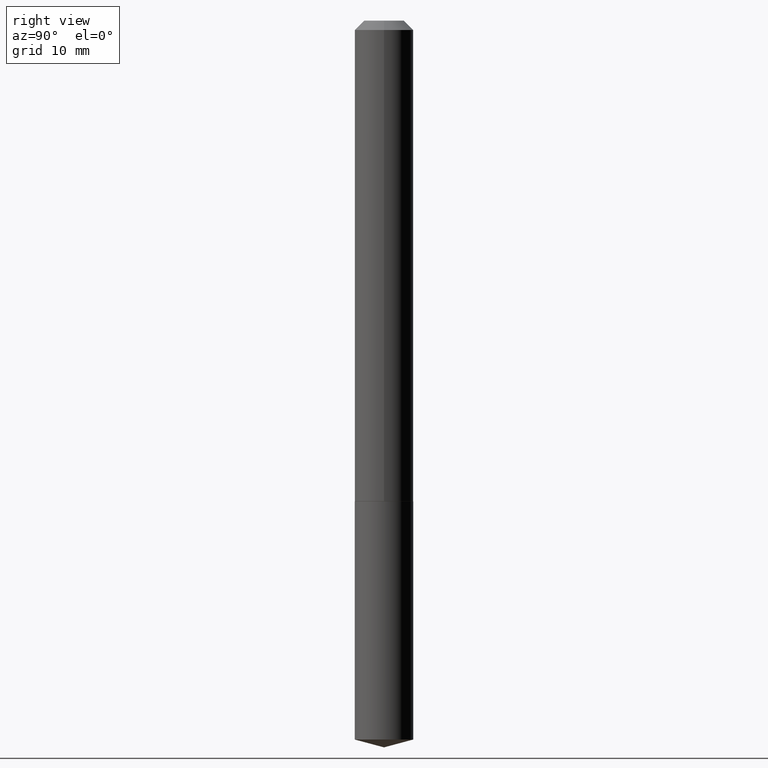
[diagram: clean part render]
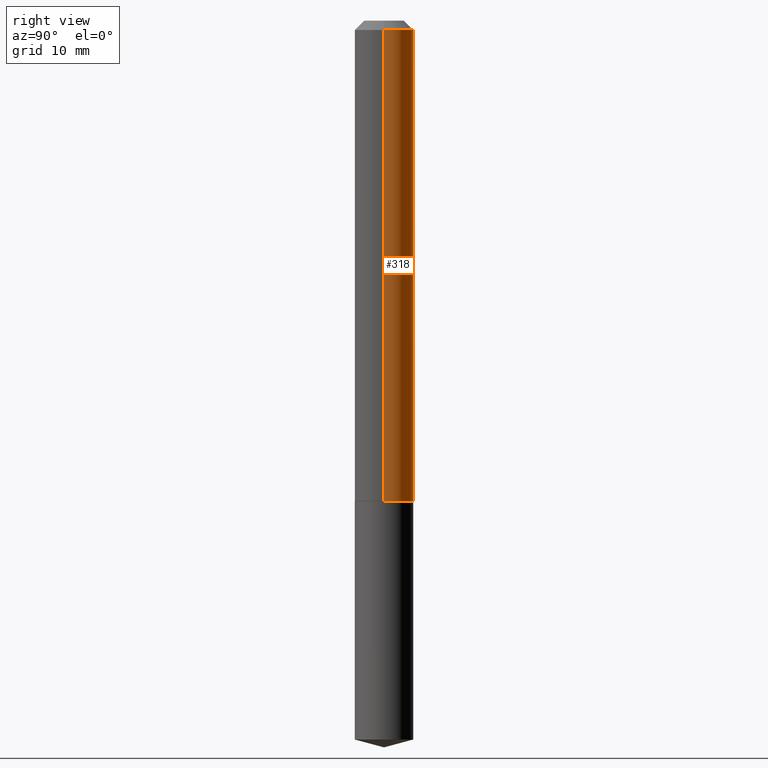
[diagram: same view with one face highlighted and labeled with its STEP entity id]
A machine part, right view. The second image highlights one B-rep face of the part: STEP entity #318.
In plain terms, the highlighted cylindrical surface (edge-blend (fillet) strip) has radius 2.5006 mm, axis along (-0, 0, 1).
Its self-contained STEP definition (entity closure, byte-faithful):
#1 = CYLINDRICAL_SURFACE ( 'NONE', #125, 0.09845000000000010687 ) ;
#11 = DIRECTION ( 'NONE',  ( -2.445468806185136877E-29, 3.491481338843145188E-15, 1.000000000000000000 ) ) ;
#12 = VERTEX_POINT ( 'NONE', #174 ) ;
#14 = LINE ( 'NONE', #284, #69 ) ;
#53 = ORIENTED_EDGE ( 'NONE', *, *, #368, .T. ) ;
#57 = FACE_OUTER_BOUND ( 'NONE', #258, .T. ) ;
#63 = EDGE_CURVE ( 'NONE', #351, #315, #94, .T. ) ;
#69 = VECTOR ( 'NONE', #11, 39.37007874015748143 ) ;
#86 = DIRECTION ( 'NONE',  ( 1.000000000000000000, -6.982962677686266711E-15, 0.000000000000000000 ) ) ;
#92 = CARTESIAN_POINT ( 'NONE',  ( -0.09845000000000020401, -4.934674113135364966E-15, -1.613700000000000134 ) ) ;
#94 = CIRCLE ( 'NONE', #311, 0.09845000000000020401 ) ;
#95 = LINE ( 'NONE', #182, #371 ) ;
#108 = DIRECTION ( 'NONE',  ( -2.445468806185136597E-29, 3.491481338843145583E-15, 1.000000000000000000 ) ) ;
#118 = VERTEX_POINT ( 'NONE', #141 ) ;
#125 = AXIS2_PLACEMENT_3D ( 'NONE', #242, #238, #209 ) ;
#129 = CIRCLE ( 'NONE', #363, 0.09845000000000000973 ) ;
#141 = CARTESIAN_POINT ( 'NONE',  ( -0.09845000000000000973, -2.172126790809196006E-15, -0.03125000000000020817 ) ) ;
#151 = EDGE_CURVE ( 'NONE', #351, #12, #14, .T. ) ;
#174 = CARTESIAN_POINT ( 'NONE',  ( 0.09845000000000000973, -7.965814674570621538E-16, -0.03125000000000020817 ) ) ;
#177 = CARTESIAN_POINT ( 'NONE',  ( 7.642090019328602662E-31, -1.091087918388490267E-16, -0.03125000000000020817 ) ) ;
#182 = CARTESIAN_POINT ( 'NONE',  ( -0.09845000000000010687, 6.995293233558193923E-16, -4.842691596355960348E-30 ) ) ;
#189 = ORIENTED_EDGE ( 'NONE', *, *, #293, .F. ) ;
#209 = DIRECTION ( 'NONE',  ( 1.000000000000000000, -6.982962677686267499E-15, 4.876176775795935793E-29 ) ) ;
#227 = ORIENTED_EDGE ( 'NONE', *, *, #151, .F. ) ;
#238 = DIRECTION ( 'NONE',  ( -2.445468806185136597E-29, 3.491481338843145583E-15, 1.000000000000000000 ) ) ;
#242 = CARTESIAN_POINT ( 'NONE',  ( 0.000000000000000000, 0.000000000000000000, 0.000000000000000000 ) ) ;
#258 = EDGE_LOOP ( 'NONE', ( #287, #53, #189, #227 ) ) ;
#284 = CARTESIAN_POINT ( 'NONE',  ( 0.09845000000000010687, -6.874726756182137434E-16, 4.800596035771104119E-30 ) ) ;
#287 = ORIENTED_EDGE ( 'NONE', *, *, #63, .T. ) ;
#293 = EDGE_CURVE ( 'NONE', #12, #118, #129, .T. ) ;
#311 = AXIS2_PLACEMENT_3D ( 'NONE', #350, #108, #346 ) ;
#315 = VERTEX_POINT ( 'NONE', #92 ) ;
#318 = ADVANCED_FACE ( 'NONE', ( #57 ), #1, .T. ) ;
#335 = CARTESIAN_POINT ( 'NONE',  ( 0.09845000000000020401, -6.321676112109399581E-15, -1.613700000000000134 ) ) ;
#346 = DIRECTION ( 'NONE',  ( 1.000000000000000000, -6.982962677686269866E-15, 0.000000000000000000 ) ) ;
#350 = CARTESIAN_POINT ( 'NONE',  ( 3.946253012540955150E-29, -5.634203436491184654E-15, -1.613700000000000134 ) ) ;
#351 = VERTEX_POINT ( 'NONE', #335 ) ;
#363 = AXIS2_PLACEMENT_3D ( 'NONE', #177, #364, #86 ) ;
#364 = DIRECTION ( 'NONE',  ( -2.445468806185136597E-29, 3.491481338843145583E-15, 1.000000000000000000 ) ) ;
#365 = DIRECTION ( 'NONE',  ( -2.445468806185136877E-29, 3.491481338843145188E-15, 1.000000000000000000 ) ) ;
#368 = EDGE_CURVE ( 'NONE', #315, #118, #95, .T. ) ;
#371 = VECTOR ( 'NONE', #365, 39.37007874015748143 ) ;